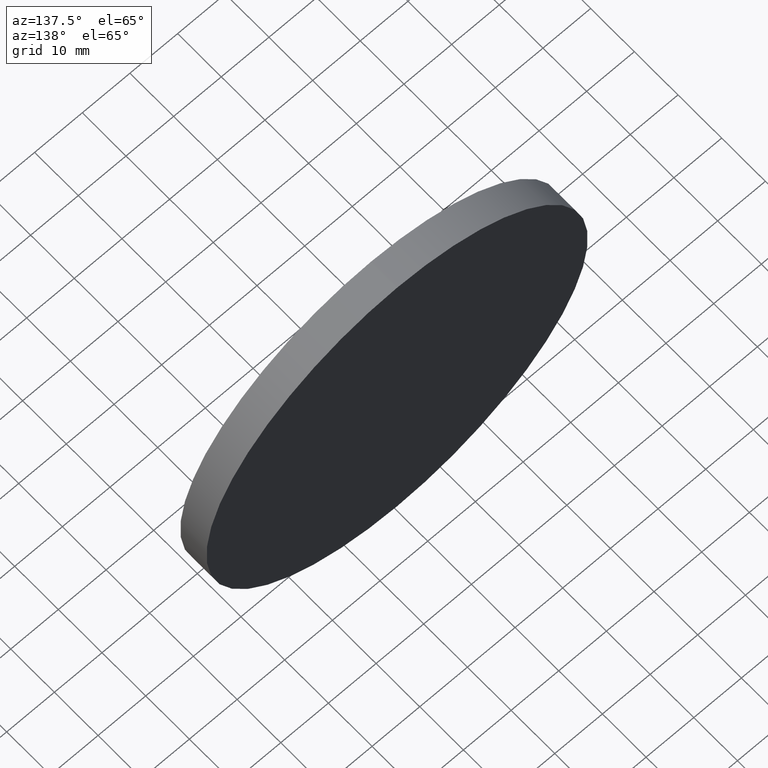
[diagram: clean part render]
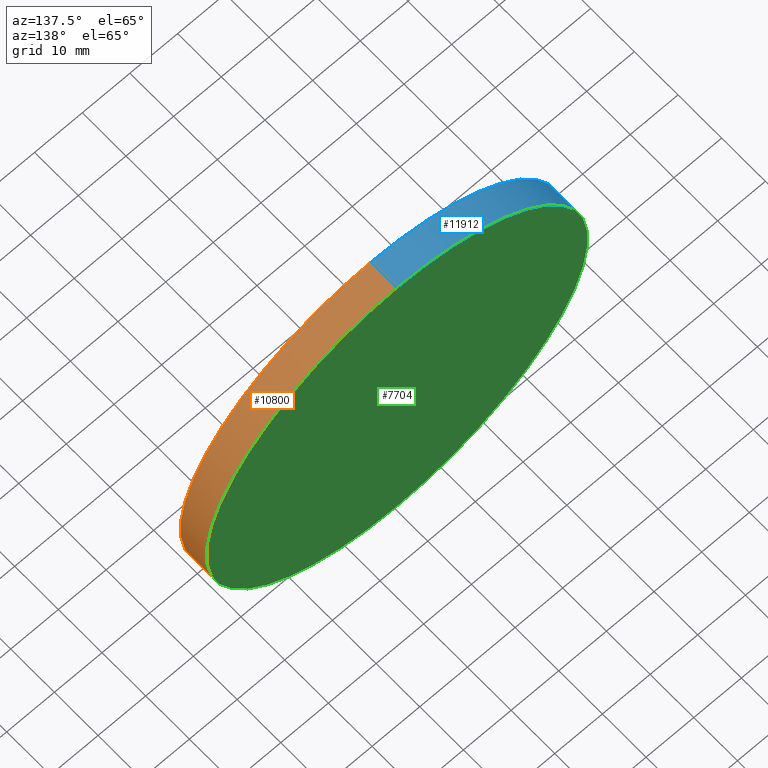
[diagram: same view with three faces highlighted in distinct colors, each labeled with its STEP entity id]
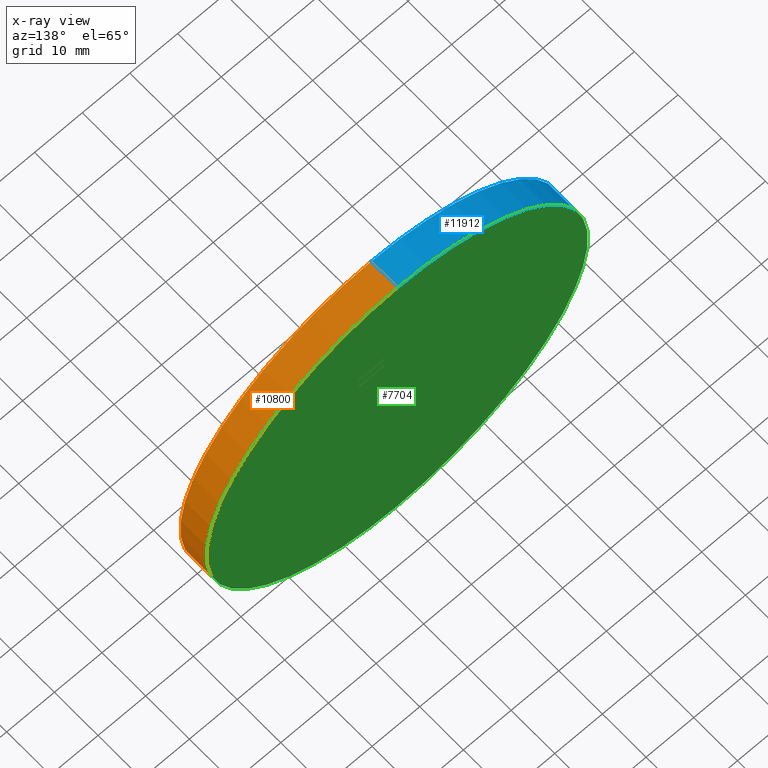
[diagram: x-ray of the same camera — body ghosted, the three highlighted faces saturated]
A machine part, auxiliary view with three faces highlighted in distinct colors.
The next image is the same camera in x-ray (body ghosted, the three faces saturated) — at least one of them is partly hidden behind the body in this view.
Their STEP definitions:

[orange] entity #10800 — the highlighted cylindrical surface (partial cylindrical patch) has radius 40 mm, axis along (-0, -1, -0).
#707 = CYLINDRICAL_SURFACE ( 'NONE', #2311, 40.00000000000000000 ) ;
#961 = DIRECTION ( 'NONE',  ( 0.000000000000000000, 1.000000000000000000, 0.000000000000000000 ) ) ;
#1052 = DIRECTION ( 'NONE',  ( -0.000000000000000000, -1.000000000000000000, -0.000000000000000000 ) ) ;
#1056 = LINE ( 'NONE', #8393, #7762 ) ;
#1495 = ORIENTED_EDGE ( 'NONE', *, *, #10613, .T. ) ;
#1755 = LINE ( 'NONE', #12485, #13039 ) ;
#1881 = CIRCLE ( 'NONE', #10419, 40.00000000000000000 ) ;
#1890 = DIRECTION ( 'NONE',  ( -0.000000000000000000, -1.000000000000000000, -0.000000000000000000 ) ) ;
#2311 = AXIS2_PLACEMENT_3D ( 'NONE', #5367, #1052, #2457 ) ;
#2457 = DIRECTION ( 'NONE',  ( 0.000000000000000000, 0.000000000000000000, -1.000000000000000000 ) ) ;
#3092 = EDGE_LOOP ( 'NONE', ( #11260, #1495, #12895, #11277 ) ) ;
#3752 = CARTESIAN_POINT ( 'NONE',  ( 4.898587196589413026E-15, 3.000000000000000000, 40.00000000000000000 ) ) ;
#3895 = CARTESIAN_POINT ( 'NONE',  ( 0.000000000000000000, 3.000000000000000000, -40.00000000000000000 ) ) ;
#5149 = VERTEX_POINT ( 'NONE', #13132 ) ;
#5367 = CARTESIAN_POINT ( 'NONE',  ( 0.000000000000000000, 3.000000000000000000, 0.000000000000000000 ) ) ;
#6200 = DIRECTION ( 'NONE',  ( 0.000000000000000000, 1.000000000000000000, 0.000000000000000000 ) ) ;
#6204 = DIRECTION ( 'NONE',  ( -0.000000000000000000, -1.000000000000000000, -0.000000000000000000 ) ) ;
#6378 = CARTESIAN_POINT ( 'NONE',  ( 0.000000000000000000, -3.000000000000000000, 0.000000000000000000 ) ) ;
#7548 = DIRECTION ( 'NONE',  ( 0.000000000000000000, 0.000000000000000000, 1.000000000000000000 ) ) ;
#7762 = VECTOR ( 'NONE', #1890, 1000.000000000000000 ) ;
#8393 = CARTESIAN_POINT ( 'NONE',  ( 0.000000000000000000, 3.000000000000000000, -40.00000000000000000 ) ) ;
#9486 = VERTEX_POINT ( 'NONE', #10759 ) ;
#9515 = EDGE_CURVE ( 'NONE', #12473, #9486, #1056, .T. ) ;
#10154 = FACE_OUTER_BOUND ( 'NONE', #3092, .T. ) ;
#10419 = AXIS2_PLACEMENT_3D ( 'NONE', #6378, #6200, #11798 ) ;
#10613 = EDGE_CURVE ( 'NONE', #12963, #5149, #1755, .T. ) ;
#10759 = CARTESIAN_POINT ( 'NONE',  ( 0.000000000000000000, -3.000000000000000000, -40.00000000000000000 ) ) ;
#10769 = AXIS2_PLACEMENT_3D ( 'NONE', #14092, #961, #7548 ) ;
#10800 = ADVANCED_FACE ( 'NONE', ( #10154 ), #707, .T. ) ;
#11260 = ORIENTED_EDGE ( 'NONE', *, *, #11993, .F. ) ;
#11277 = ORIENTED_EDGE ( 'NONE', *, *, #9515, .F. ) ;
#11798 = DIRECTION ( 'NONE',  ( 0.000000000000000000, 0.000000000000000000, 1.000000000000000000 ) ) ;
#11993 = EDGE_CURVE ( 'NONE', #12963, #12473, #14048, .T. ) ;
#12473 = VERTEX_POINT ( 'NONE', #3895 ) ;
#12485 = CARTESIAN_POINT ( 'NONE',  ( 4.898587196589413026E-15, 3.000000000000000000, 40.00000000000000000 ) ) ;
#12895 = ORIENTED_EDGE ( 'NONE', *, *, #13932, .T. ) ;
#12963 = VERTEX_POINT ( 'NONE', #3752 ) ;
#13039 = VECTOR ( 'NONE', #6204, 1000.000000000000000 ) ;
#13132 = CARTESIAN_POINT ( 'NONE',  ( 4.898587196589413026E-15, -3.000000000000000000, 40.00000000000000000 ) ) ;
#13932 = EDGE_CURVE ( 'NONE', #5149, #9486, #1881, .T. ) ;
#14048 = CIRCLE ( 'NONE', #10769, 40.00000000000000000 ) ;
#14092 = CARTESIAN_POINT ( 'NONE',  ( 0.000000000000000000, 3.000000000000000000, 0.000000000000000000 ) ) ;

[blue] entity #11912 — the highlighted cylindrical surface (partial cylindrical patch) has radius 40 mm, axis along (-0, -1, -0).
#261 = EDGE_CURVE ( 'NONE', #9486, #5149, #11108, .T. ) ;
#345 = FACE_OUTER_BOUND ( 'NONE', #2462, .T. ) ;
#1056 = LINE ( 'NONE', #8393, #7762 ) ;
#1755 = LINE ( 'NONE', #12485, #13039 ) ;
#1890 = DIRECTION ( 'NONE',  ( -0.000000000000000000, -1.000000000000000000, -0.000000000000000000 ) ) ;
#2226 = DIRECTION ( 'NONE',  ( 0.000000000000000000, 0.000000000000000000, 1.000000000000000000 ) ) ;
#2462 = EDGE_LOOP ( 'NONE', ( #6150, #7143, #8313, #11981 ) ) ;
#2740 = EDGE_CURVE ( 'NONE', #12473, #12963, #7345, .T. ) ;
#3528 = DIRECTION ( 'NONE',  ( 0.000000000000000000, 1.000000000000000000, 0.000000000000000000 ) ) ;
#3752 = CARTESIAN_POINT ( 'NONE',  ( 4.898587196589413026E-15, 3.000000000000000000, 40.00000000000000000 ) ) ;
#3895 = CARTESIAN_POINT ( 'NONE',  ( 0.000000000000000000, 3.000000000000000000, -40.00000000000000000 ) ) ;
#3902 = AXIS2_PLACEMENT_3D ( 'NONE', #8338, #12899, #5281 ) ;
#5149 = VERTEX_POINT ( 'NONE', #13132 ) ;
#5281 = DIRECTION ( 'NONE',  ( 0.000000000000000000, 0.000000000000000000, -1.000000000000000000 ) ) ;
#5628 = CARTESIAN_POINT ( 'NONE',  ( 0.000000000000000000, -3.000000000000000000, 0.000000000000000000 ) ) ;
#6150 = ORIENTED_EDGE ( 'NONE', *, *, #10613, .F. ) ;
#6204 = DIRECTION ( 'NONE',  ( -0.000000000000000000, -1.000000000000000000, -0.000000000000000000 ) ) ;
#7143 = ORIENTED_EDGE ( 'NONE', *, *, #2740, .F. ) ;
#7345 = CIRCLE ( 'NONE', #12390, 40.00000000000000000 ) ;
#7762 = VECTOR ( 'NONE', #1890, 1000.000000000000000 ) ;
#7843 = CARTESIAN_POINT ( 'NONE',  ( 0.000000000000000000, 3.000000000000000000, 0.000000000000000000 ) ) ;
#8313 = ORIENTED_EDGE ( 'NONE', *, *, #9515, .T. ) ;
#8338 = CARTESIAN_POINT ( 'NONE',  ( 0.000000000000000000, 3.000000000000000000, 0.000000000000000000 ) ) ;
#8393 = CARTESIAN_POINT ( 'NONE',  ( 0.000000000000000000, 3.000000000000000000, -40.00000000000000000 ) ) ;
#9154 = AXIS2_PLACEMENT_3D ( 'NONE', #5628, #10051, #2226 ) ;
#9486 = VERTEX_POINT ( 'NONE', #10759 ) ;
#9515 = EDGE_CURVE ( 'NONE', #12473, #9486, #1056, .T. ) ;
#10051 = DIRECTION ( 'NONE',  ( 0.000000000000000000, 1.000000000000000000, 0.000000000000000000 ) ) ;
#10182 = DIRECTION ( 'NONE',  ( 0.000000000000000000, 0.000000000000000000, 1.000000000000000000 ) ) ;
#10303 = CYLINDRICAL_SURFACE ( 'NONE', #3902, 40.00000000000000000 ) ;
#10613 = EDGE_CURVE ( 'NONE', #12963, #5149, #1755, .T. ) ;
#10759 = CARTESIAN_POINT ( 'NONE',  ( 0.000000000000000000, -3.000000000000000000, -40.00000000000000000 ) ) ;
#11108 = CIRCLE ( 'NONE', #9154, 40.00000000000000000 ) ;
#11912 = ADVANCED_FACE ( 'NONE', ( #345 ), #10303, .T. ) ;
#11981 = ORIENTED_EDGE ( 'NONE', *, *, #261, .T. ) ;
#12390 = AXIS2_PLACEMENT_3D ( 'NONE', #7843, #3528, #10182 ) ;
#12473 = VERTEX_POINT ( 'NONE', #3895 ) ;
#12485 = CARTESIAN_POINT ( 'NONE',  ( 4.898587196589413026E-15, 3.000000000000000000, 40.00000000000000000 ) ) ;
#12899 = DIRECTION ( 'NONE',  ( -0.000000000000000000, -1.000000000000000000, -0.000000000000000000 ) ) ;
#12963 = VERTEX_POINT ( 'NONE', #3752 ) ;
#13039 = VECTOR ( 'NONE', #6204, 1000.000000000000000 ) ;
#13132 = CARTESIAN_POINT ( 'NONE',  ( 4.898587196589413026E-15, -3.000000000000000000, 40.00000000000000000 ) ) ;

[green] entity #7704 — the highlighted planar face has unit normal (0, 1, 0).
#961 = DIRECTION ( 'NONE',  ( 0.000000000000000000, 1.000000000000000000, 0.000000000000000000 ) ) ;
#1102 = AXIS2_PLACEMENT_3D ( 'NONE', #7149, #6177, #11590 ) ;
#1615 = EDGE_LOOP ( 'NONE', ( #8801, #9768 ) ) ;
#2740 = EDGE_CURVE ( 'NONE', #12473, #12963, #7345, .T. ) ;
#3528 = DIRECTION ( 'NONE',  ( 0.000000000000000000, 1.000000000000000000, 0.000000000000000000 ) ) ;
#3752 = CARTESIAN_POINT ( 'NONE',  ( 4.898587196589413026E-15, 3.000000000000000000, 40.00000000000000000 ) ) ;
#3895 = CARTESIAN_POINT ( 'NONE',  ( 0.000000000000000000, 3.000000000000000000, -40.00000000000000000 ) ) ;
#6177 = DIRECTION ( 'NONE',  ( 0.000000000000000000, 1.000000000000000000, 0.000000000000000000 ) ) ;
#6908 = PLANE ( 'NONE',  #1102 ) ;
#7149 = CARTESIAN_POINT ( 'NONE',  ( 0.000000000000000000, 3.000000000000000000, 0.000000000000000000 ) ) ;
#7345 = CIRCLE ( 'NONE', #12390, 40.00000000000000000 ) ;
#7548 = DIRECTION ( 'NONE',  ( 0.000000000000000000, 0.000000000000000000, 1.000000000000000000 ) ) ;
#7704 = ADVANCED_FACE ( 'NONE', ( #11728 ), #6908, .T. ) ;
#7843 = CARTESIAN_POINT ( 'NONE',  ( 0.000000000000000000, 3.000000000000000000, 0.000000000000000000 ) ) ;
#8801 = ORIENTED_EDGE ( 'NONE', *, *, #2740, .T. ) ;
#9768 = ORIENTED_EDGE ( 'NONE', *, *, #11993, .T. ) ;
#10182 = DIRECTION ( 'NONE',  ( 0.000000000000000000, 0.000000000000000000, 1.000000000000000000 ) ) ;
#10769 = AXIS2_PLACEMENT_3D ( 'NONE', #14092, #961, #7548 ) ;
#11590 = DIRECTION ( 'NONE',  ( 0.000000000000000000, -0.000000000000000000, 1.000000000000000000 ) ) ;
#11728 = FACE_OUTER_BOUND ( 'NONE', #1615, .T. ) ;
#11993 = EDGE_CURVE ( 'NONE', #12963, #12473, #14048, .T. ) ;
#12390 = AXIS2_PLACEMENT_3D ( 'NONE', #7843, #3528, #10182 ) ;
#12473 = VERTEX_POINT ( 'NONE', #3895 ) ;
#12963 = VERTEX_POINT ( 'NONE', #3752 ) ;
#14048 = CIRCLE ( 'NONE', #10769, 40.00000000000000000 ) ;
#14092 = CARTESIAN_POINT ( 'NONE',  ( 0.000000000000000000, 3.000000000000000000, 0.000000000000000000 ) ) ;